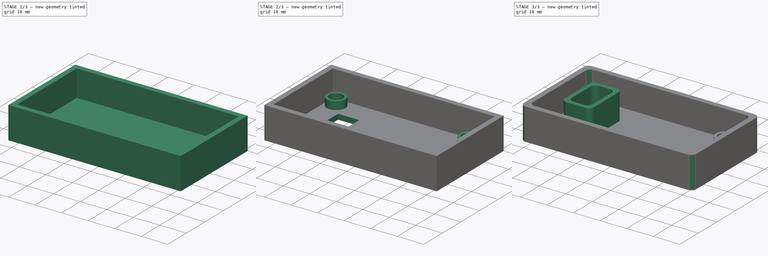
[diagram: build sequence overview — one tinted view per stage of 3, left to right]
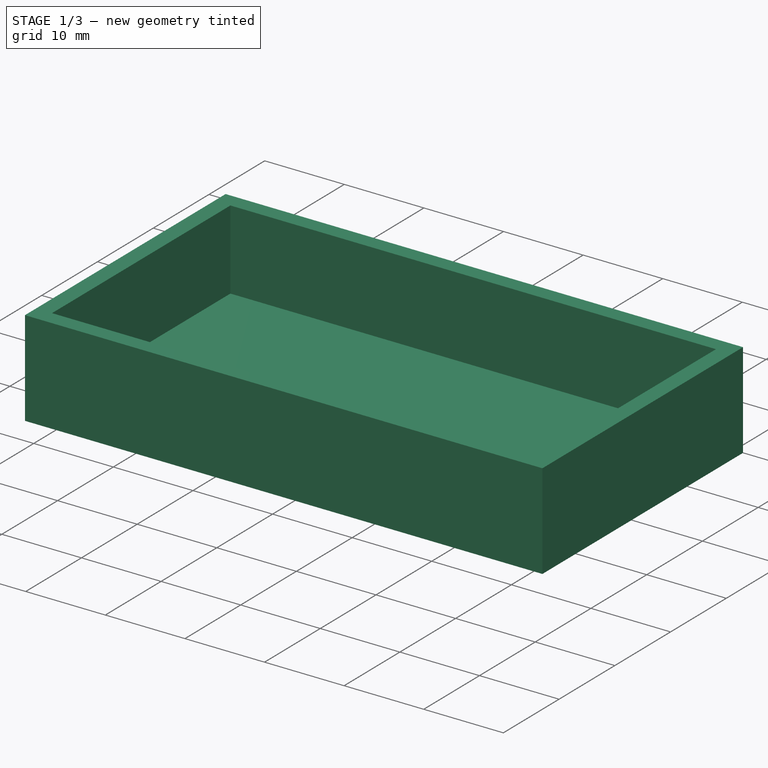
[diagram: stage 1 of 3 — iso view after this stage's code; geometry added in this stage tinted green]
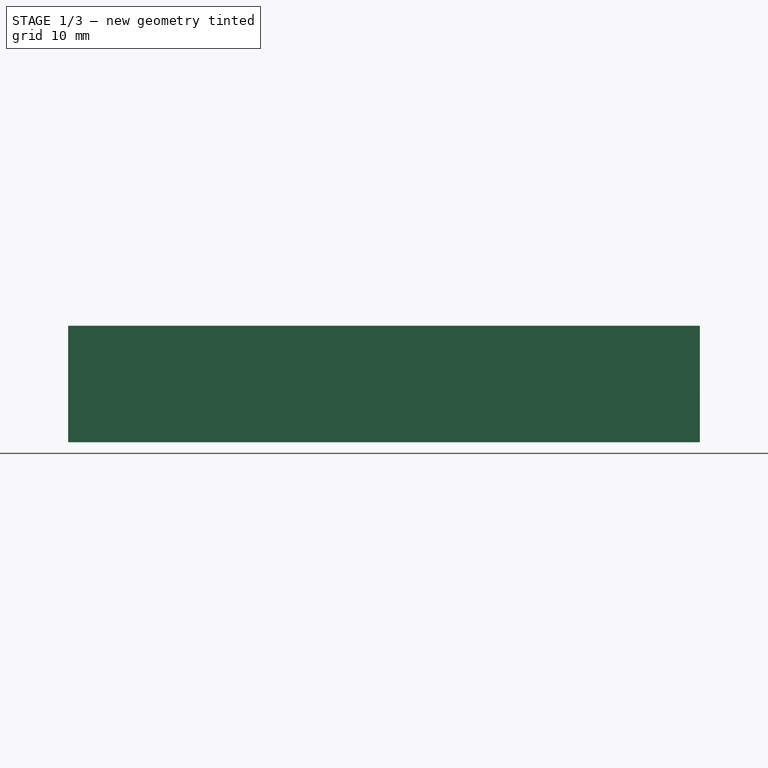
[diagram: stage 1 of 3 — front view after this stage's code; geometry added in this stage tinted green]
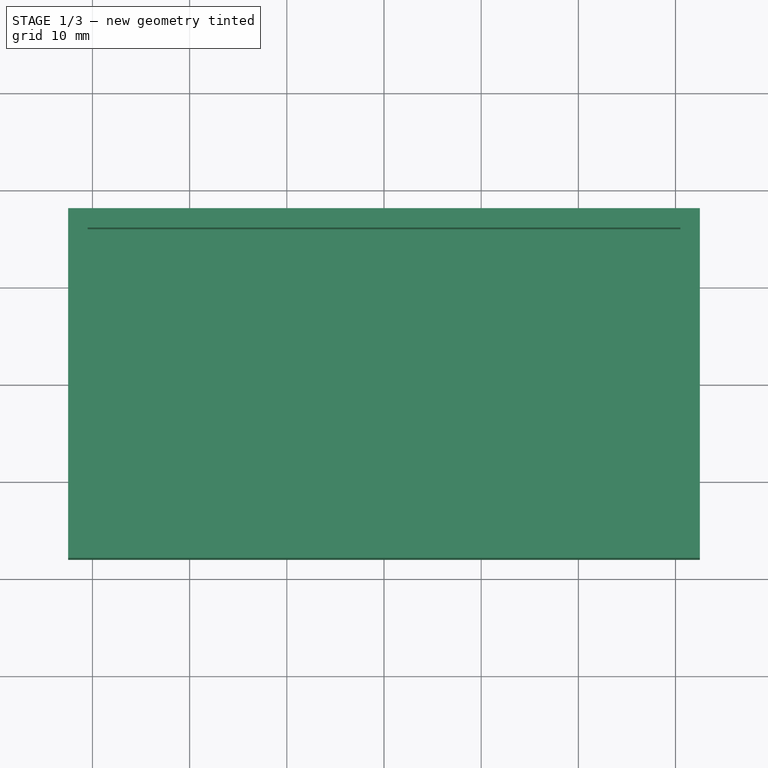
[diagram: stage 1 of 3 — top view after this stage's code; geometry added in this stage tinted green]
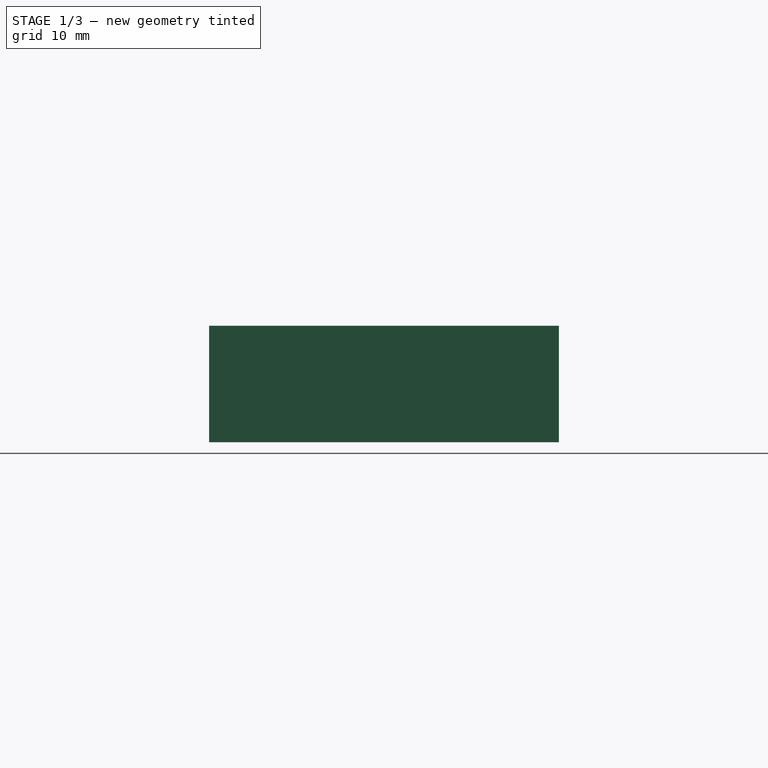
[diagram: stage 1 of 3 — right view after this stage's code; geometry added in this stage tinted green]
FCSTD DOCUMENT  (FreeCAD 0.21R33668 +7 (Git))
Label: perfboard_tray
License: All rights reserved
LicenseURL: http://en.wikipedia.org/wiki/All_rights_reserved
objects: Sketcher::SketchObject×5, PartDesign::Pad×4, PartDesign::Hole×1, PartDesign::Pocket×1, PartDesign::Fillet×1, PartDesign::Body×1
note: 20 computed .brp shape members not serialized (recipe doc carries the construction recipe); baked Part::Feature solids carry a one-line shape summary decoded from their .brp

FEATURE [Sketcher::SketchObject] Sketch  label="FloorProfile"
  FullyConstrained = true
  MapMode = 5
  Support = -> [XY_Plane]
  sketch-geometry (4):
    g0: LineSegment StartX=-32.5 StartY=18 StartZ=0 EndX=32.5 EndY=18 EndZ=0
    g1: LineSegment StartX=32.5 StartY=18 StartZ=0 EndX=32.5 EndY=-18 EndZ=0
    g2: LineSegment StartX=32.5 StartY=-18 StartZ=0 EndX=-32.5 EndY=-18 EndZ=0
    g3: LineSegment StartX=-32.5 StartY=-18 StartZ=0 EndX=-32.5 EndY=18 EndZ=0
  constraints (10):
    c: Coincident(g0,g1)
    c: Coincident(g1,g2)
    c: Coincident(g2,g3)
    c: Coincident(g3,g0)
    c: Horizontal(g2)
    c: Vertical(g3)
    c: Symmetric(g0,g1,g-1)
    c: Symmetric(g0,g0,g-2)
    c: DistanceY(g1,g0) = 36  'Width'
    c: DistanceX(g0,g0) = 65  'Length'
FEATURE [PartDesign::Pad] Pad  label="Floor"
  Direction = (0,0,1)
  Length = 2
  Length2 = 10
  Profile = -> Sketch
  ReferenceAxis = -> Sketch [N_Axis]
  Type = 0
FEATURE [Sketcher::SketchObject] Sketch001  label="WallsProfile"
  AttachmentOffset = pos=(0,0,2) rot=(0,0,1;0rad)
  FullyConstrained = true
  MapMode = 5
  Placement = pos=(0,0,2) rot=(0,0,1;0rad)
  Support = -> [XY_Plane]
  expr: .AttachmentOffset.Base.z = <<Floor>>.Length
  expr: Constraints[19] = .Constraints.WallThickness
  expr: Constraints[20] = .Constraints.WallThickness
  expr: Constraints[21] = .Constraints.WallThickness
  expr: Constraints[8] = <<FloorProfile>>.Constraints.Width
  expr: Constraints[9] = <<FloorProfile>>.Constraints.Length
  sketch-geometry (8):
    g0: LineSegment StartX=-32.5 StartY=18 StartZ=0 EndX=32.5 EndY=18 EndZ=0
    g1: LineSegment StartX=32.5 StartY=18 StartZ=0 EndX=32.5 EndY=-18 EndZ=0
    g2: LineSegment StartX=32.5 StartY=-18 StartZ=0 EndX=-32.5 EndY=-18 EndZ=0
    g3: LineSegment StartX=-32.5 StartY=-18 StartZ=0 EndX=-32.5 EndY=18 EndZ=0
    g4: LineSegment StartX=-30.5 StartY=16 StartZ=0 EndX=30.5 EndY=16 EndZ=0
    g5: LineSegment StartX=30.5 StartY=16 StartZ=0 EndX=30.5 EndY=-16 EndZ=0
    g6: LineSegment StartX=30.5 StartY=-16 StartZ=0 EndX=-30.5 EndY=-16 EndZ=0
    g7: LineSegment StartX=-30.5 StartY=-16 StartZ=0 EndX=-30.5 EndY=16 EndZ=0
  constraints (22):
    c: Coincident(g0,g1)
    c: Coincident(g1,g2)
    c: Coincident(g2,g3)
    c: Coincident(g3,g0)
    c: Horizontal(g2)
    c: Vertical(g1)
    c: Symmetric(g0,g0,g-2)
    c: Symmetric(g0,g2,g-1)
    c: DistanceY(g1,g1) = 36
    c: DistanceX(g0,g0) = 65
    c: Coincident(g4,g5)
    c: Coincident(g5,g6)
    c: Coincident(g6,g7)
    c: Coincident(g7,g4)
    c: Horizontal(g4)
    c: Horizontal(g6)
    c: Vertical(g5)
    c: Vertical(g7)
    c: DistanceX(g2,g6) = 2  'WallThickness'
    c: DistanceY(g2,g6) = 2
    c: DistanceY(g4,g0) = 2
    c: DistanceX(g4,g0) = 2
FEATURE [PartDesign::Pad] Pad001  label="Walls"
  BaseFeature = -> Pad
  Direction = (0,0,1)
  Length = 10
  Length2 = 10
  Profile = -> Sketch001
  ReferenceAxis = -> Sketch001 [N_Axis]
  Type = 0
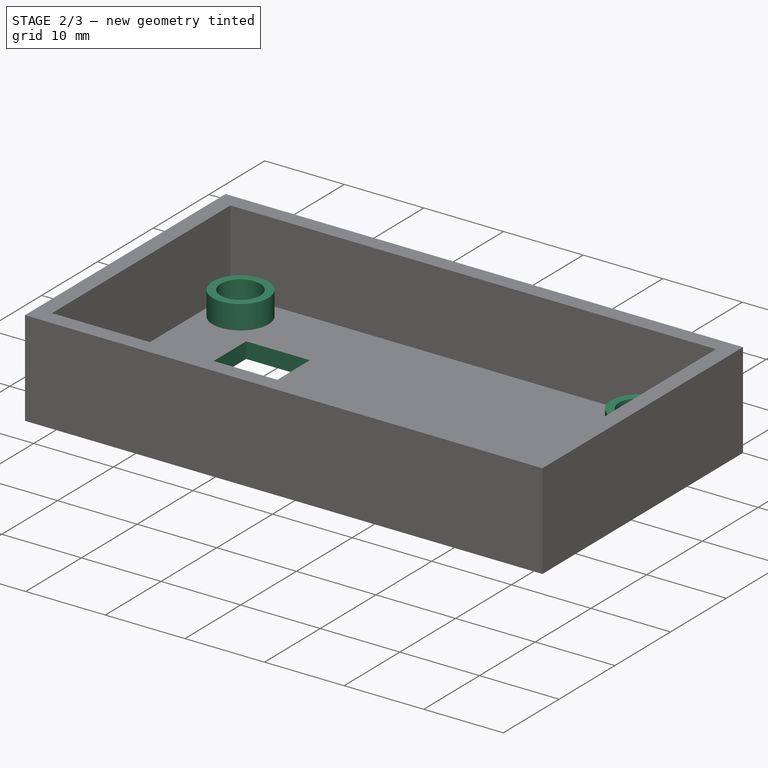
[diagram: stage 2 of 3 — iso view after this stage's code; geometry added in this stage tinted green]
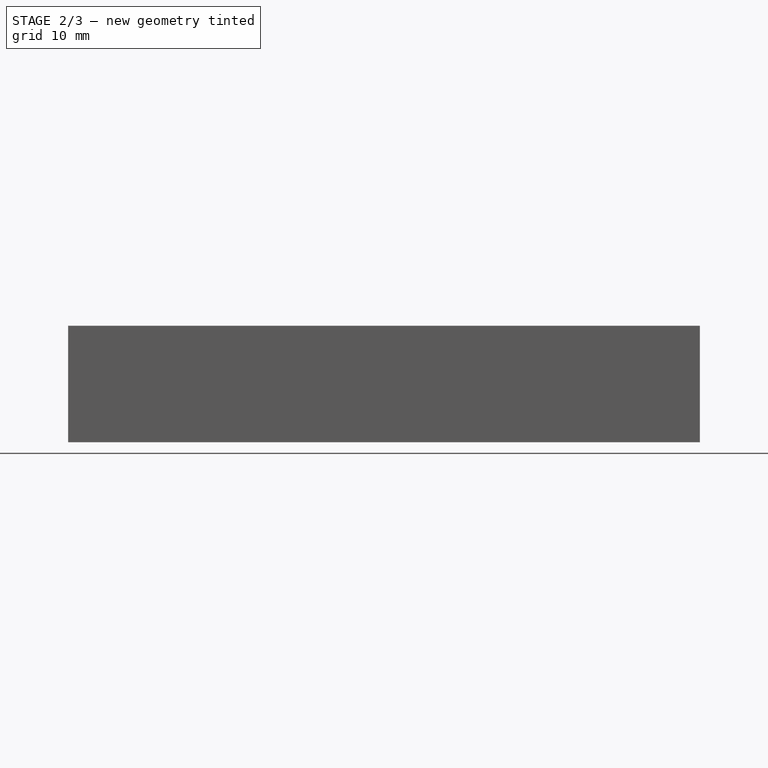
[diagram: stage 2 of 3 — front view after this stage's code; geometry added in this stage tinted green]
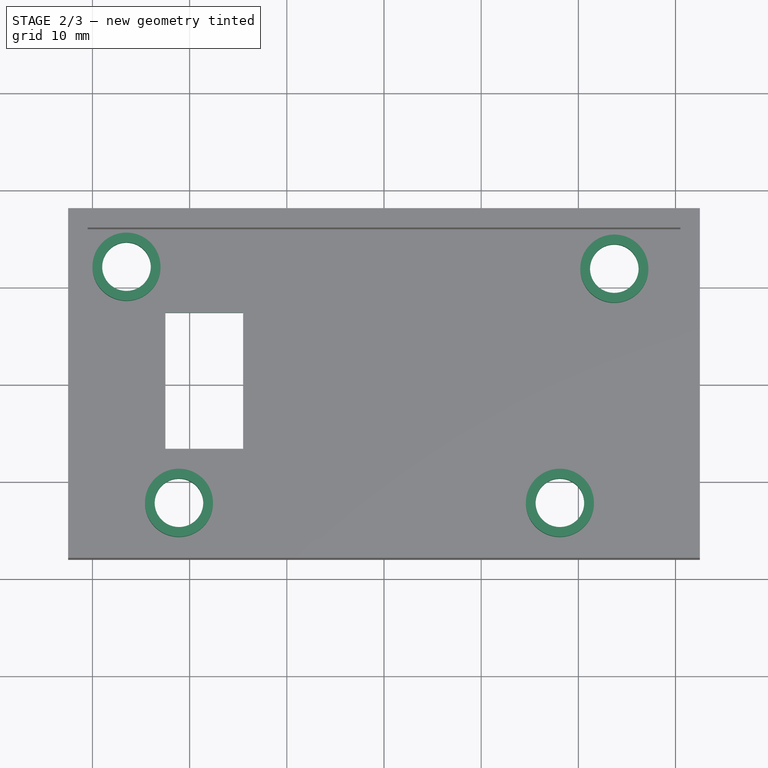
[diagram: stage 2 of 3 — top view after this stage's code; geometry added in this stage tinted green]
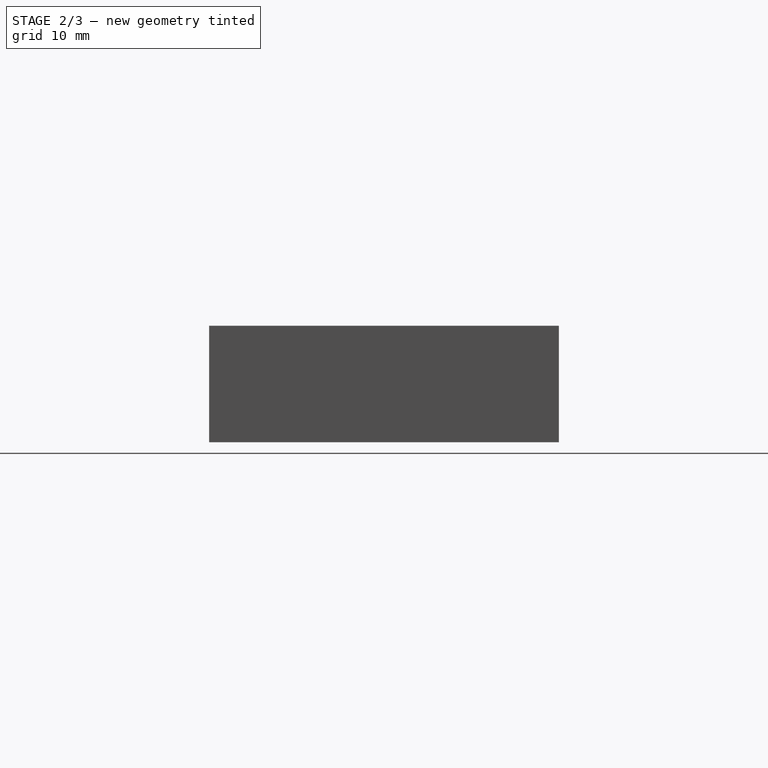
[diagram: stage 2 of 3 — right view after this stage's code; geometry added in this stage tinted green]
FEATURE [Sketcher::SketchObject] Sketch002  label="BossesProfile"
  FullyConstrained = true
  MapMode = 5
  Support = -> [XY_Plane]
  expr: Constraints[1] = .Constraints.BossDiameter
  expr: Constraints[4] = .Constraints.BossDiameter
  expr: Constraints[7] = .Constraints.BossDiameter
  sketch-geometry (4):
    g0: Circle CenterX=-26.5 CenterY=12.1 CenterZ=0 NormalX=0 NormalY=0 NormalZ=1 AngleXU=0 Radius=3.5
    g1: Circle CenterX=-21.1 CenterY=-12.2 CenterZ=0 NormalX=0 NormalY=0 NormalZ=1 AngleXU=0 Radius=3.5
    g2: Circle CenterX=23.7 CenterY=11.9 CenterZ=0 NormalX=0 NormalY=0 NormalZ=1 AngleXU=0 Radius=3.5
    g3: Circle CenterX=18.1 CenterY=-12.2 CenterZ=0 NormalX=0 NormalY=0 NormalZ=1 AngleXU=0 Radius=3.5
  constraints (12):
    c: Diameter(g0) = 7  'BossDiameter'
    c: Diameter(g1) = 7
    c: DistanceY(g1,g0) = 24.3
    c: DistanceX(g1,g0) = -5.4
    c: Diameter(g2) = 7
    c: DistanceX(g0,g2) = 50.2
    c: DistanceY(g0,g2) = -0.2
    c: Diameter(g3) = 7
    c: DistanceX(g0,g3) = 44.6
    c: DistanceY(g3,g0) = 24.3
    c: DistanceX(g0,g-1) = 26.5
    c: DistanceY(g-1,g0) = 12.1
FEATURE [PartDesign::Pad] Pad002  label="BossesPad"
  BaseFeature = -> Pad001
  Direction = (0,0,1)
  Length = 5
  Length2 = 10
  Profile = -> Sketch002
  ReferenceAxis = -> Sketch002 [N_Axis]
  Type = 0
FEATURE [PartDesign::Hole] Hole
  BaseFeature = -> Pad002
  CustomThreadClearance = 0
  Depth = 151.446
  DepthType = 1
  Diameter = 5
  DrillForDepth = false
  DrillPoint = 1
  DrillPointAngle = 118
  HoleCutCountersinkAngle = 8
  HoleCutCustomValues = false
  HoleCutDepth = 0
  HoleCutDiameter = 5.2
  HoleCutType = 2
  ModelThread = false
  Profile = -> Sketch002
  Reversed = true
  Tapered = false
  TaperedAngle = 90
  ThreadClass = 0
  ThreadDepth = 151.446
  ThreadDepthType = 0
  ThreadDirection = 0
  ThreadFit = 0
  ThreadSize = 0
  ThreadType = 0
  Threaded = false
  UseCustomThreadClearance = false
FEATURE [Sketcher::SketchObject] Sketch003  label="HoleProfile"
  FullyConstrained = true
  MapMode = 5
  Support = -> [XY_Plane]
  sketch-geometry (4):
    g0: LineSegment StartX=-22.5 StartY=7.4 StartZ=0 EndX=-14.5 EndY=7.4 EndZ=0
    g1: LineSegment StartX=-14.5 StartY=7.4 StartZ=0 EndX=-14.5 EndY=-6.6 EndZ=0
    g2: LineSegment StartX=-14.5 StartY=-6.6 StartZ=0 EndX=-22.5 EndY=-6.6 EndZ=0
    g3: LineSegment StartX=-22.5 StartY=-6.6 StartZ=0 EndX=-22.5 EndY=7.4 EndZ=0
  constraints (12):
    c: Coincident(g0,g1)
    c: Coincident(g1,g2)
    c: Coincident(g2,g3)
    c: Coincident(g3,g0)
    c: Horizontal(g0)
    c: Horizontal(g2)
    c: Vertical(g1)
    c: Vertical(g3)
    c: DistanceX(g0,g0) = 8
    c: DistanceY(g1,g1) = 14
    c: DistanceX(g0,g-1) = 14.5
    c: DistanceY(g1,g-1) = 6.6
FEATURE [PartDesign::Pocket] Pocket
  BaseFeature = -> Hole
  Direction = (0,0,-1)
  Length = 5
  Length2 = 5
  Profile = -> Sketch003
  ReferenceAxis = -> Sketch003 [N_Axis]
  Reversed = true
  Type = 1
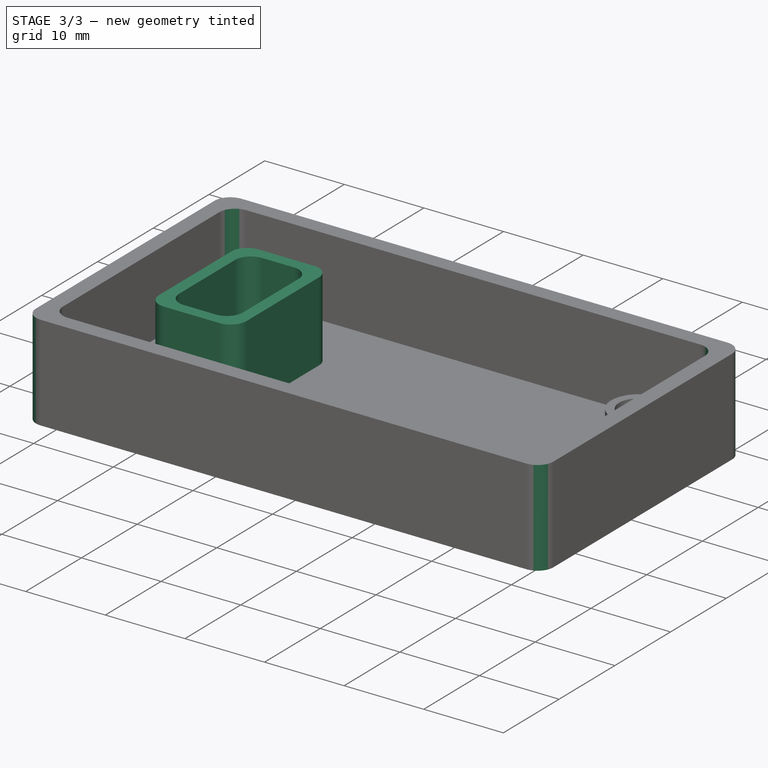
[diagram: stage 3 of 3 — iso view after this stage's code; geometry added in this stage tinted green]
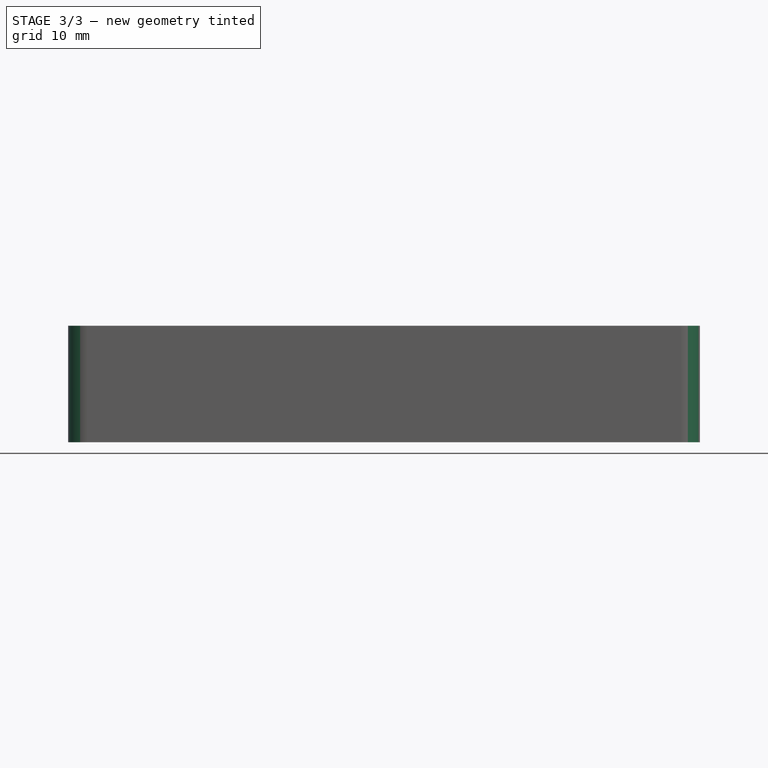
[diagram: stage 3 of 3 — front view after this stage's code; geometry added in this stage tinted green]
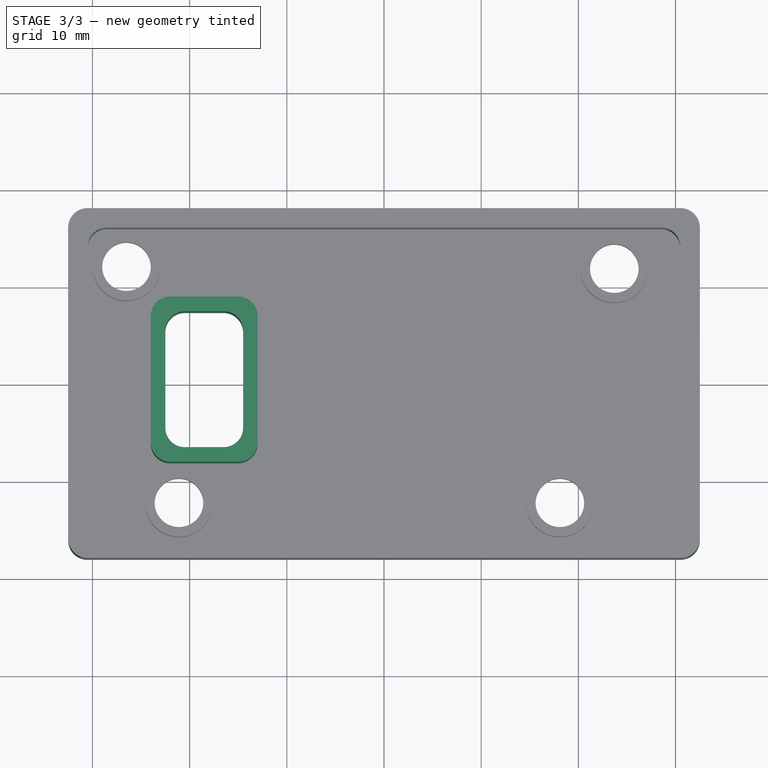
[diagram: stage 3 of 3 — top view after this stage's code; geometry added in this stage tinted green]
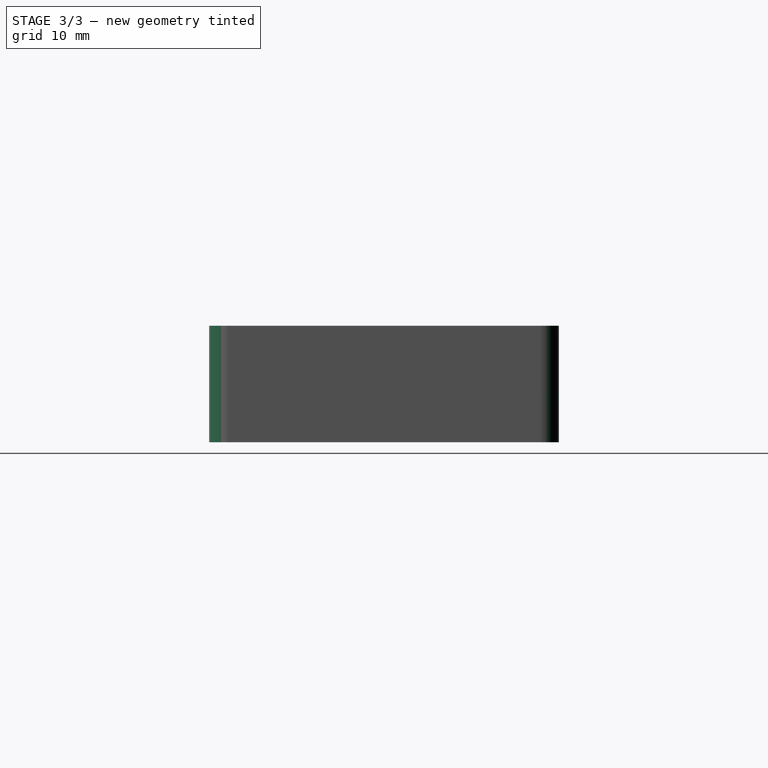
[diagram: stage 3 of 3 — right view after this stage's code; geometry added in this stage tinted green]
FEATURE [Sketcher::SketchObject] Sketch004
  AttachmentOffset = pos=(0,0,2) rot=(0,0,1;0rad)
  ExternalGeometry = -> [Pocket]
  FullyConstrained = true
  MapMode = 5
  Placement = pos=(0,0,2) rot=(0,0,1;0rad)
  Support = -> [XY_Plane]
  expr: .AttachmentOffset.Base.z = <<Floor>>.Length
  expr: Constraints[10] = .Constraints.WallThickness
  expr: Constraints[11] = .Constraints.WallThickness
  expr: Constraints[9] = .Constraints.WallThickness
  sketch-geometry (8):
    g0: LineSegment StartX=-24 StartY=8.9 StartZ=0 EndX=-13 EndY=8.9 EndZ=0
    g1: LineSegment StartX=-13 StartY=8.9 StartZ=0 EndX=-13 EndY=-8.1 EndZ=0
    g2: LineSegment StartX=-13 StartY=-8.1 StartZ=0 EndX=-24 EndY=-8.1 EndZ=0
    g3: LineSegment StartX=-24 StartY=-8.1 StartZ=0 EndX=-24 EndY=8.9 EndZ=0
    g4: LineSegment StartX=-22.5 StartY=7.4 StartZ=0 EndX=-14.5 EndY=7.4 EndZ=0
    g5: LineSegment StartX=-14.5 StartY=7.4 StartZ=0 EndX=-14.5 EndY=-6.6 EndZ=0
    g6: LineSegment StartX=-14.5 StartY=-6.6 StartZ=0 EndX=-22.5 EndY=-6.6 EndZ=0
    g7: LineSegment StartX=-22.5 StartY=-6.6 StartZ=0 EndX=-22.5 EndY=7.4 EndZ=0
  constraints (22):
    c: Coincident(g0,g1)
    c: Coincident(g1,g2)
    c: Coincident(g2,g3)
    c: Coincident(g3,g0)
    c: Horizontal(g0)
    c: Horizontal(g2)
    c: Vertical(g1)
    c: Vertical(g3)
    c: DistanceX(g0,g-4) = 1.5  'WallThickness'
    c: DistanceY(g-4,g0) = 1.5
    c: DistanceY(g1,g-6) = 1.5
    c: DistanceX(g-6,g1) = 1.5
    c: Coincident(g4,g5)
    c: Coincident(g5,g6)
    c: Coincident(g6,g7)
    c: Coincident(g7,g4)
    c: Horizontal(g4)
    c: Horizontal(g6)
    c: Vertical(g5)
    c: Vertical(g7)
    c: Coincident(g4,g-4)
    c: Coincident(g5,g-6)
FEATURE [PartDesign::Pad] Pad003
  BaseFeature = -> Pocket
  Direction = (0,0,1)
  Length = 10
  Length2 = 10
  Profile = -> Sketch004
  ReferenceAxis = -> Sketch004 [N_Axis]
  Type = 0
  expr: Length = <<Walls>>.Length
FEATURE [PartDesign::Fillet] Fillet
  Base = -> Pad003 [Edge24,Edge66,Edge20,Edge61,Edge26,Edge64,Edge62,Edge21,Edge93,Edge94,Edge49,Edge52,Edge91,Edge50,Edge92,Edge54]
  BaseFeature = -> Pad003
  Radius = 2
  SupportTransform = false
  UseAllEdges = false
FEATURE [PartDesign::Body] Body
  Group = -> [Sketch,Pad,Sketch001,Pad001,Sketch002,Pad002,Hole,Sketch003,Pocket,Sketch004,Pad003,Fillet]
  Origin = -> Origin
  Tip = -> Fillet
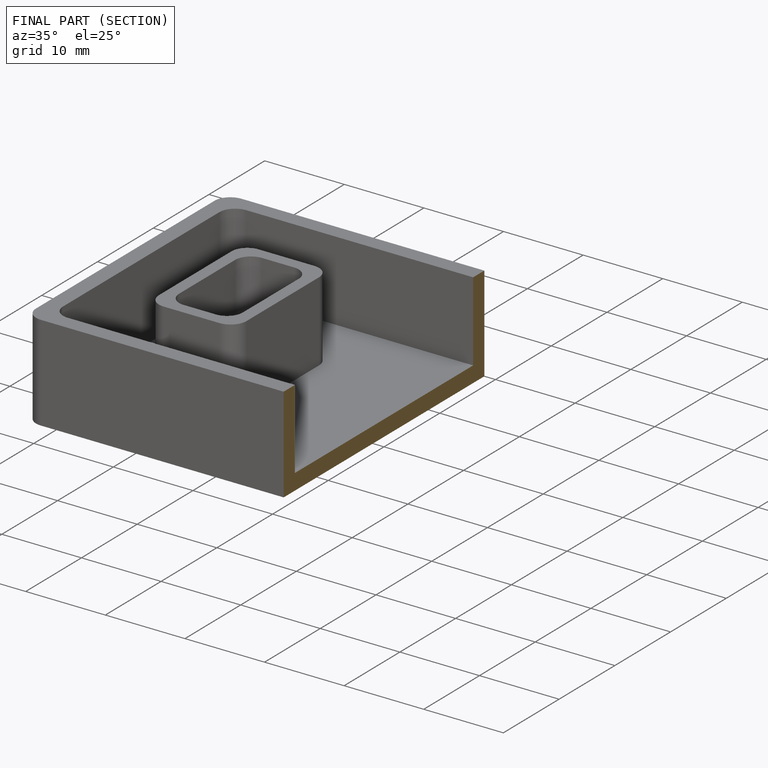
[diagram: finished part — half-section view (interior)]
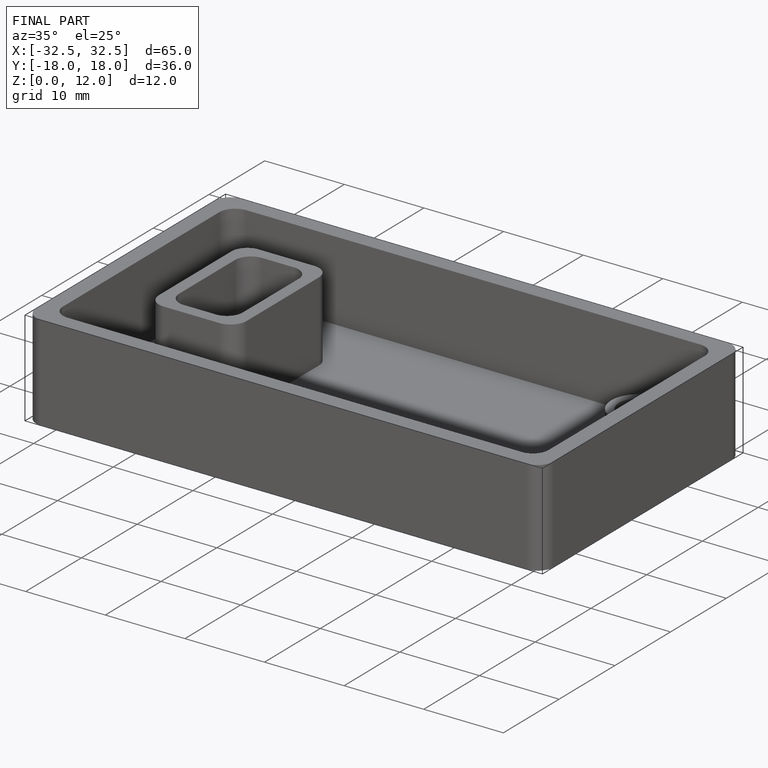
[diagram: finished part — iso view with bounding-box wireframe]
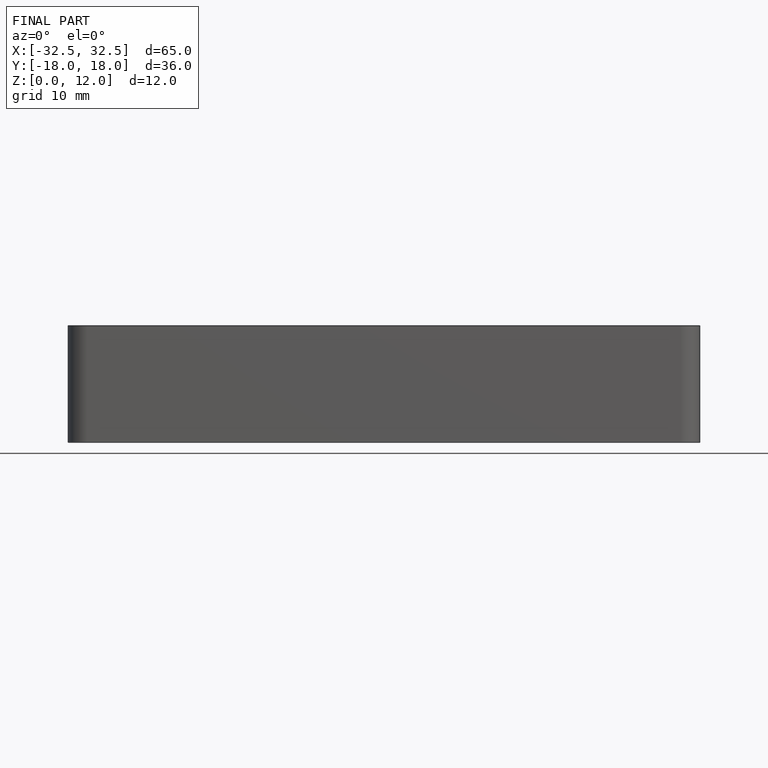
[diagram: finished part — front view with bounding-box wireframe]
